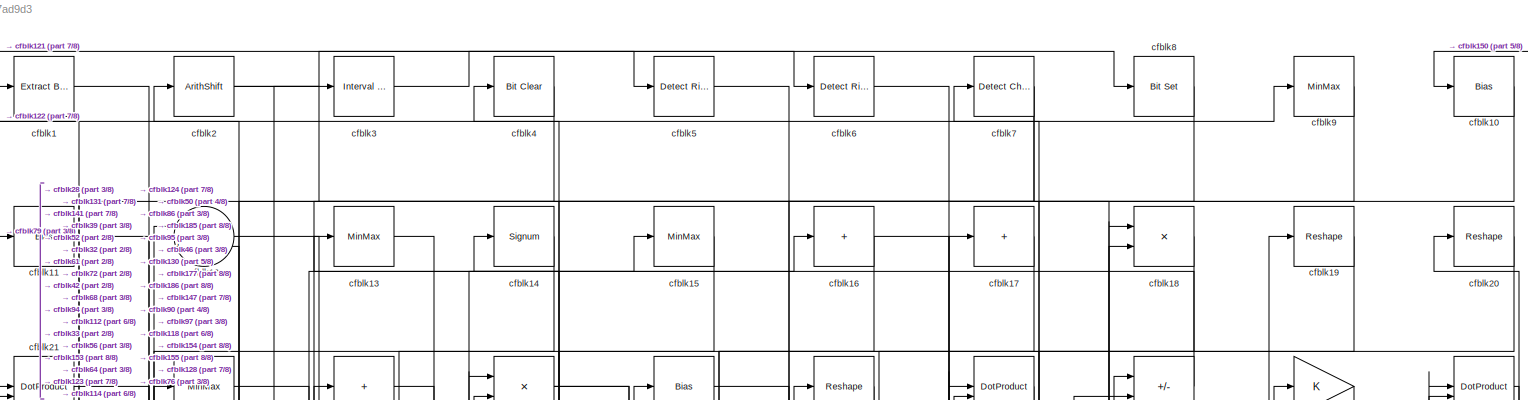
[diagram: root canvas - part 1/8, full width, top band]
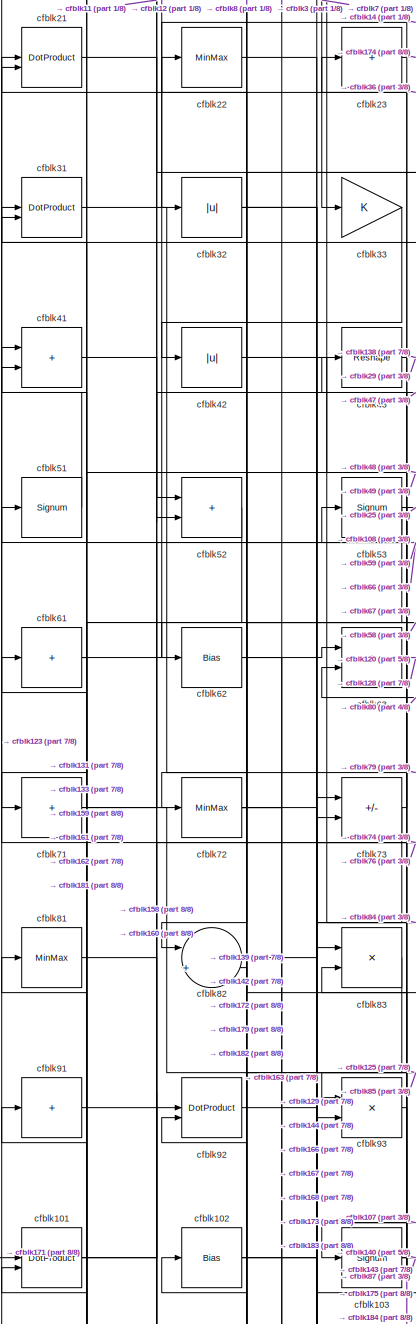
[diagram: root canvas - part 2/8, middle left region]
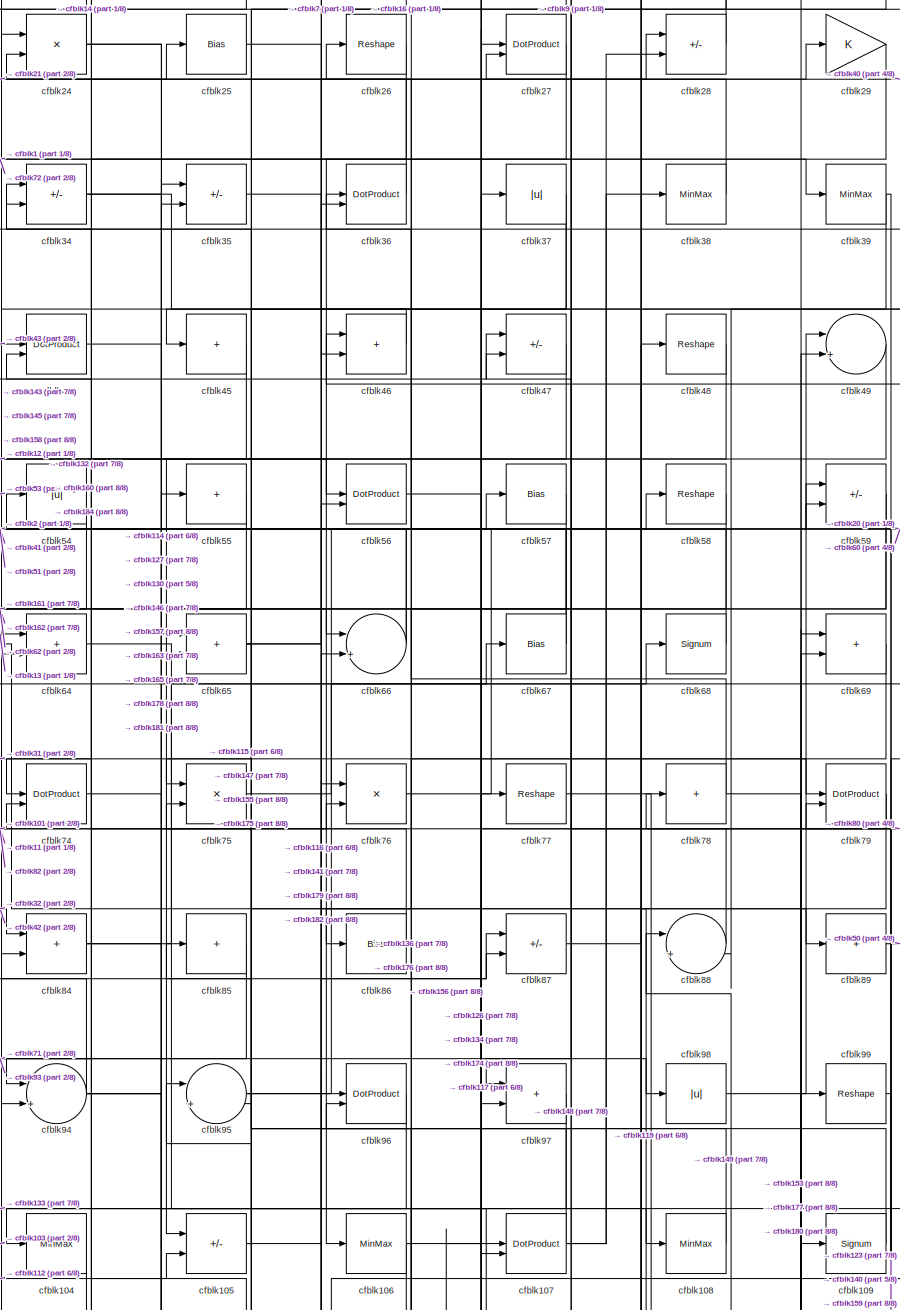
[diagram: root canvas - part 3/8, central region]
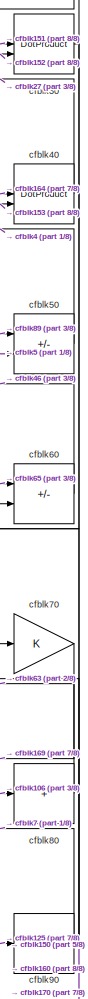
[diagram: root canvas - part 4/8, top right region]
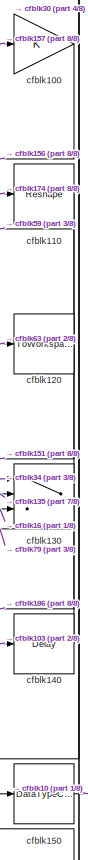
[diagram: root canvas - part 5/8, middle right region]
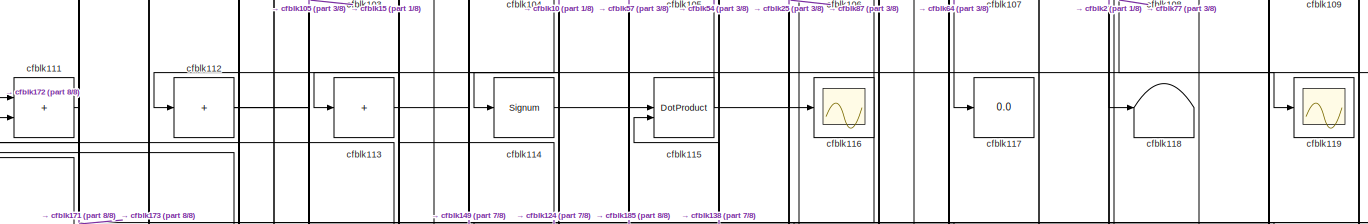
[diagram: root canvas - part 6/8, full width, middle band]
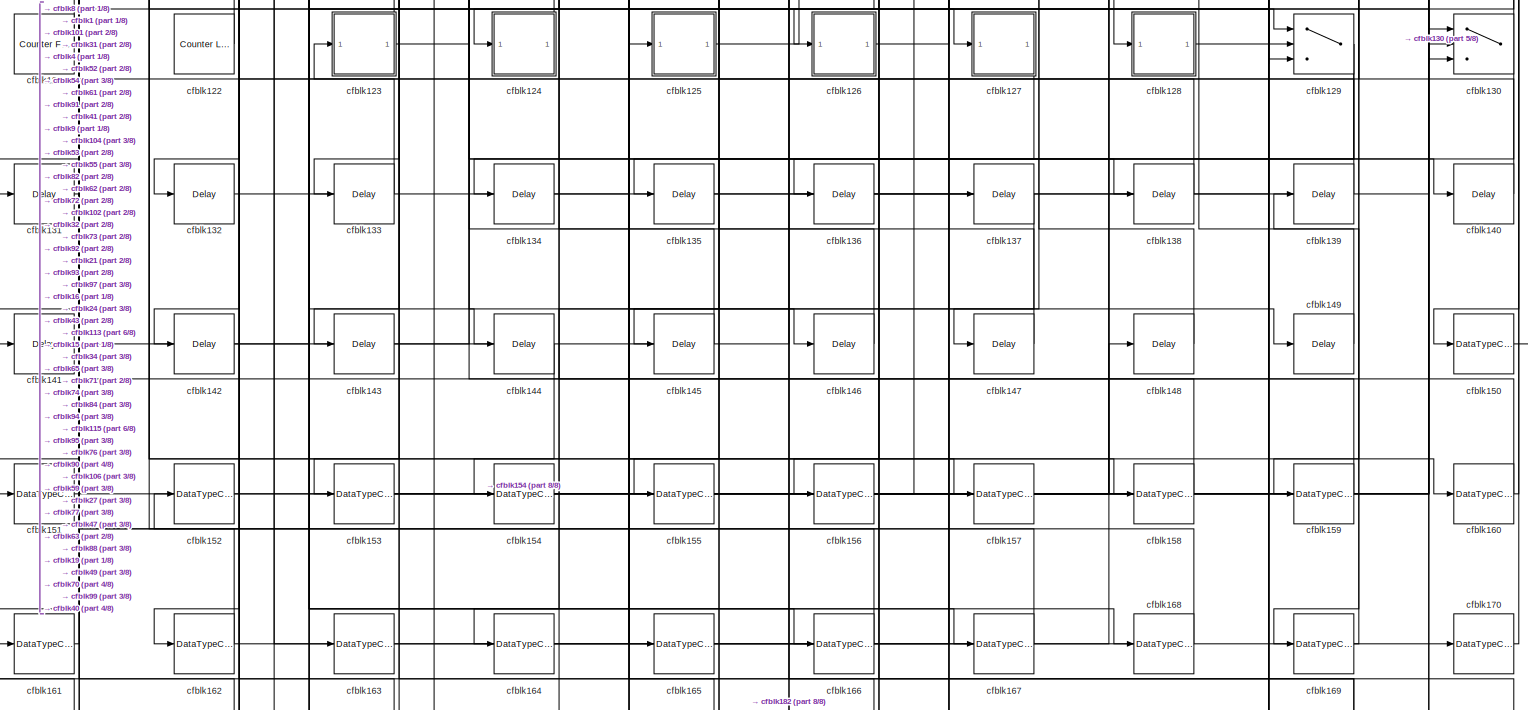
[diagram: root canvas - part 7/8, full width, bottom band]
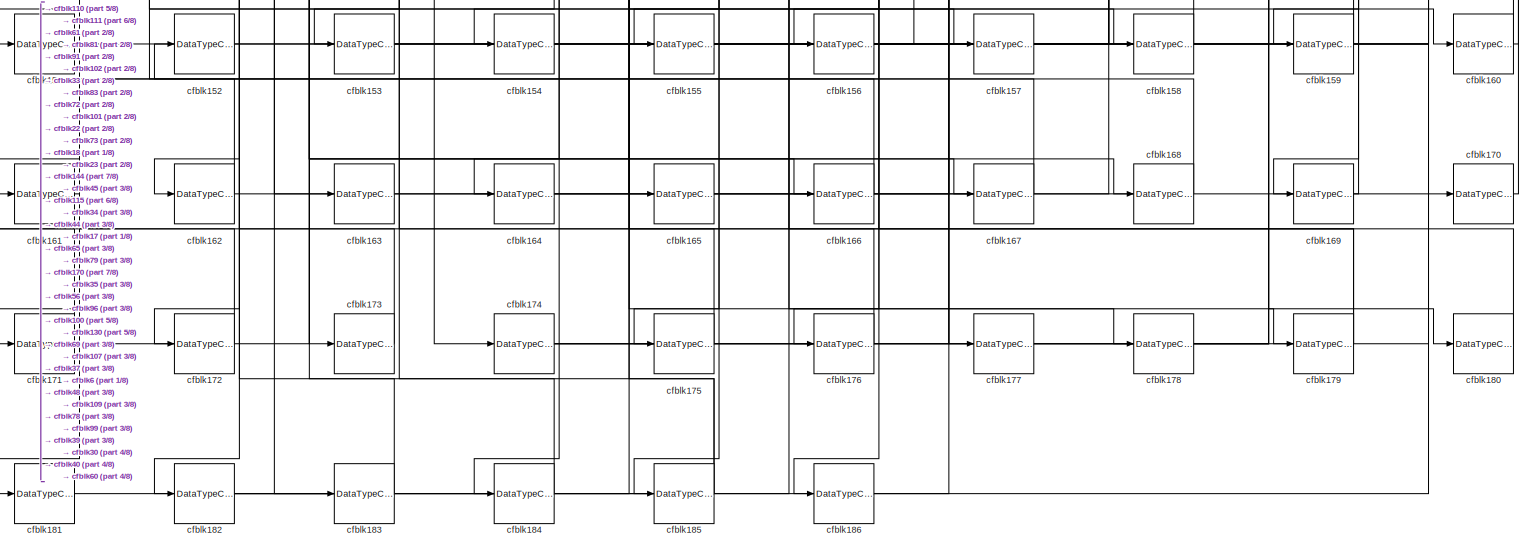
[diagram: root canvas - part 8/8, full width, bottom band]
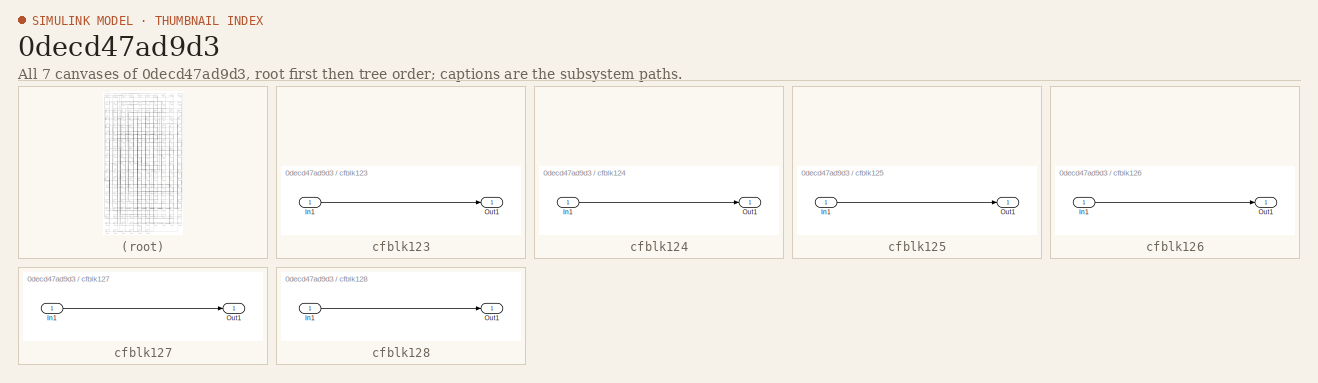
[diagram: thumbnail index - all 7 canvases of the model, root first then tree order]
MODEL slx_0decd47ad9d3
KIND model
CONFIG AbsTol = auto
CONFIG EnableMultiTasking = off
CONFIG FixedStep = auto
CONFIG MaxStep = auto
CONFIG MinStep = auto
CONFIG RelTol = 1e-3
CONFIG SampleTimeConstraint = Unconstrained
CONFIG SolverName = VariableStepAuto
CONFIG StartTime = 0.0
CONFIG StopTime = 10.0
BLOCK [Reference] cfblk1  REF=simulink/Logic and Bit
Operations/Extract Bits
  LibrarySourceBlock = hdlsllib/Logic and Bit\nOperations/Extract Bits
  SourceBlock = simulink/Logic and Bit\nOperations/Extract Bits
  SourceType = Extract Bits
BLOCK [Bias] cfblk10
  Bias = 0.0
  SaturateOnIntegerOverflow = off
BLOCK [Gain] cfblk100
BLOCK [DotProduct] cfblk101
  OutDataTypeStr = Inherit: Inherit via internal rule
BLOCK [Bias] cfblk102
  Bias = 0.0
  SaturateOnIntegerOverflow = off
BLOCK [Signum] cfblk103
BLOCK [MinMax] cfblk104
BLOCK [Sum] cfblk105
  IconShape = rectangular
  Inputs = +-
BLOCK [MinMax] cfblk106
BLOCK [DotProduct] cfblk107
  OutDataTypeStr = Inherit: Inherit via internal rule
BLOCK [MinMax] cfblk108
BLOCK [Signum] cfblk109
BLOCK [Bias] cfblk11
  Bias = 0.0
  SaturateOnIntegerOverflow = off
BLOCK [Reshape] cfblk110
BLOCK [Sum] cfblk111
  IconShape = rectangular
BLOCK [Sum] cfblk112
  IconShape = rectangular
  Inputs = +
BLOCK [Sum] cfblk113
  IconShape = rectangular
  Inputs = +
BLOCK [Signum] cfblk114
BLOCK [DotProduct] cfblk115
  OutDataTypeStr = Inherit: Inherit via internal rule
BLOCK [Scope] cfblk116
  Floating = off
  NumInputPorts = 1
  ScopeSpecificationString = Simulink.scopes.TimeScopeBlockCfg('CurrentConfiguration', extmgr.ConfigurationSet(extmgr.Configuration('Core','General UI',true),extmgr.Configuration('Core','Source UI',true),extmgr.Configuration('Sources','WiredSimulink',true,'DataLoggingVariableName','ScopeData2','DataLoggingSaveFormat','Array','DataLoggingLimitDataPoints',true,'DataLoggingDecimation','1'),extmgr.Configuration('Visuals','Time Do...<+868ch>
BLOCK [Display] cfblk117
  Decimation = 1
BLOCK [Terminator] cfblk118
BLOCK [Scope] cfblk119
  Floating = off
  NumInputPorts = 1
  ScopeSpecificationString = Simulink.scopes.TimeScopeBlockCfg('CurrentConfiguration', extmgr.ConfigurationSet(extmgr.Configuration('Core','General UI',true),extmgr.Configuration('Core','Source UI',true),extmgr.Configuration('Sources','WiredSimulink',true,'DataLoggingVariableName','ScopeData2','DataLoggingSaveFormat','Array','DataLoggingLimitDataPoints',true,'DataLoggingDecimation','1'),extmgr.Configuration('Visuals','Time Do...<+868ch>
BLOCK [Sum] cfblk12
  Inputs = |++
BLOCK [ToWorkspace] cfblk120
  MaxDataPoints = inf
  SampleTime = -1
  SaveFormat = Timeseries
  VariableName = simout
BLOCK [Reference] cfblk121  REF=hdlsllib/Sources/Counter
Free-Running
  SourceBlock = hdlsllib/Sources/Counter\nFree-Running
  SourceType = Counter Free-Running
BLOCK [Reference] cfblk122  REF=hdlsllib/Sources/Counter
Limited
  SourceBlock = hdlsllib/Sources/Counter\nLimited
  SourceType = Counter Limited
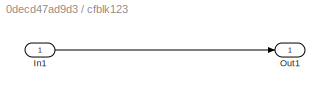
BLOCK [SubSystem] cfblk123
  LibrarySourceBlock = hdlsllib/Ports &\nSubsystems/Subsystem
BLOCK [Inport] cfblk123/In1
BLOCK [Outport] cfblk123/Out1
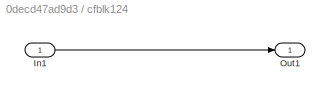
BLOCK [SubSystem] cfblk124
  LibrarySourceBlock = hdlsllib/Ports &\nSubsystems/Subsystem
BLOCK [Inport] cfblk124/In1
BLOCK [Outport] cfblk124/Out1
BLOCK [SubSystem] cfblk125
  LibrarySourceBlock = hdlsllib/Ports &\nSubsystems/Subsystem
BLOCK [Inport] cfblk125/In1
BLOCK [Outport] cfblk125/Out1
BLOCK [SubSystem] cfblk126
  LibrarySourceBlock = hdlsllib/Ports &\nSubsystems/Subsystem
BLOCK [Inport] cfblk126/In1
BLOCK [Outport] cfblk126/Out1
BLOCK [SubSystem] cfblk127
  LibrarySourceBlock = hdlsllib/Ports &\nSubsystems/Subsystem
BLOCK [Inport] cfblk127/In1
BLOCK [Outport] cfblk127/Out1
BLOCK [SubSystem] cfblk128
  LibrarySourceBlock = hdlsllib/Ports &\nSubsystems/Subsystem
BLOCK [Inport] cfblk128/In1
BLOCK [Outport] cfblk128/Out1
BLOCK [Switch] cfblk129
  InputSameDT = off
  SaturateOnIntegerOverflow = off
BLOCK [MinMax] cfblk13
BLOCK [Switch] cfblk130
  InputSameDT = off
  SaturateOnIntegerOverflow = off
BLOCK [Delay] cfblk131
  InputPortMap = u0
  SampleTime = 1
BLOCK [Delay] cfblk132
  InputPortMap = u0
  SampleTime = 1
BLOCK [Delay] cfblk133
  InputPortMap = u0
  SampleTime = 1
BLOCK [Delay] cfblk134
  InputPortMap = u0
  SampleTime = 1
BLOCK [Delay] cfblk135
  InputPortMap = u0
  SampleTime = 1
BLOCK [Delay] cfblk136
  InputPortMap = u0
  SampleTime = 1
BLOCK [Delay] cfblk137
  InputPortMap = u0
  SampleTime = 1
BLOCK [Delay] cfblk138
  InputPortMap = u0
  SampleTime = 1
BLOCK [Delay] cfblk139
  InputPortMap = u0
  SampleTime = 1
BLOCK [Signum] cfblk14
BLOCK [Delay] cfblk140
  InputPortMap = u0
  SampleTime = 1
BLOCK [Delay] cfblk141
  InputPortMap = u0
  SampleTime = 1
BLOCK [Delay] cfblk142
  InputPortMap = u0
  SampleTime = 1
BLOCK [Delay] cfblk143
  InputPortMap = u0
  SampleTime = 1
BLOCK [Delay] cfblk144
  InputPortMap = u0
  SampleTime = 1
BLOCK [Delay] cfblk145
  InputPortMap = u0
  SampleTime = 1
BLOCK [Delay] cfblk146
  InputPortMap = u0
  SampleTime = 1
BLOCK [Delay] cfblk147
  InputPortMap = u0
  SampleTime = 1
BLOCK [Delay] cfblk148
  InputPortMap = u0
  SampleTime = 1
BLOCK [Delay] cfblk149
  InputPortMap = u0
  SampleTime = 1
BLOCK [MinMax] cfblk15
BLOCK [DataTypeConversion] cfblk150
  OutDataTypeStr = uint8
  RndMeth = Floor
  SaturateOnIntegerOverflow = off
BLOCK [DataTypeConversion] cfblk151
  OutDataTypeStr = uint8
  RndMeth = Floor
  SaturateOnIntegerOverflow = off
BLOCK [DataTypeConversion] cfblk152
  OutDataTypeStr = uint8
  RndMeth = Floor
  SaturateOnIntegerOverflow = off
BLOCK [DataTypeConversion] cfblk153
  RndMeth = Floor
  SaturateOnIntegerOverflow = off
BLOCK [DataTypeConversion] cfblk154
  OutDataTypeStr = uint8
  RndMeth = Floor
  SaturateOnIntegerOverflow = off
BLOCK [DataTypeConversion] cfblk155
  OutDataTypeStr = uint8
  RndMeth = Floor
  SaturateOnIntegerOverflow = off
BLOCK [DataTypeConversion] cfblk156
  RndMeth = Floor
  SaturateOnIntegerOverflow = off
BLOCK [DataTypeConversion] cfblk157
  OutDataTypeStr = uint8
  RndMeth = Floor
  SaturateOnIntegerOverflow = off
BLOCK [DataTypeConversion] cfblk158
  OutDataTypeStr = uint8
  RndMeth = Floor
  SaturateOnIntegerOverflow = off
BLOCK [DataTypeConversion] cfblk159
  OutDataTypeStr = uint8
  RndMeth = Floor
  SaturateOnIntegerOverflow = off
BLOCK [Sum] cfblk16
  IconShape = rectangular
  Inputs = +
BLOCK [DataTypeConversion] cfblk160
  RndMeth = Floor
  SaturateOnIntegerOverflow = off
BLOCK [DataTypeConversion] cfblk161
  OutDataTypeStr = uint8
  RndMeth = Floor
  SaturateOnIntegerOverflow = off
BLOCK [DataTypeConversion] cfblk162
  RndMeth = Floor
  SaturateOnIntegerOverflow = off
BLOCK [DataTypeConversion] cfblk163
  OutDataTypeStr = uint8
  RndMeth = Floor
  SaturateOnIntegerOverflow = off
BLOCK [DataTypeConversion] cfblk164
  OutDataTypeStr = uint8
  RndMeth = Floor
  SaturateOnIntegerOverflow = off
BLOCK [DataTypeConversion] cfblk165
  OutDataTypeStr = uint8
  RndMeth = Floor
  SaturateOnIntegerOverflow = off
BLOCK [DataTypeConversion] cfblk166
  OutDataTypeStr = uint8
  RndMeth = Floor
  SaturateOnIntegerOverflow = off
BLOCK [DataTypeConversion] cfblk167
  OutDataTypeStr = uint8
  RndMeth = Floor
  SaturateOnIntegerOverflow = off
BLOCK [DataTypeConversion] cfblk168
  OutDataTypeStr = uint8
  RndMeth = Floor
  SaturateOnIntegerOverflow = off
BLOCK [DataTypeConversion] cfblk169
  OutDataTypeStr = uint8
  RndMeth = Floor
  SaturateOnIntegerOverflow = off
BLOCK [Sum] cfblk17
  IconShape = rectangular
  Inputs = +
BLOCK [DataTypeConversion] cfblk170
  OutDataTypeStr = uint8
  RndMeth = Floor
  SaturateOnIntegerOverflow = off
BLOCK [DataTypeConversion] cfblk171
  RndMeth = Floor
  SaturateOnIntegerOverflow = off
BLOCK [DataTypeConversion] cfblk172
  OutDataTypeStr = uint8
  RndMeth = Floor
  SaturateOnIntegerOverflow = off
BLOCK [DataTypeConversion] cfblk173
  OutDataTypeStr = uint8
  RndMeth = Floor
  SaturateOnIntegerOverflow = off
BLOCK [DataTypeConversion] cfblk174
  RndMeth = Floor
  SaturateOnIntegerOverflow = off
BLOCK [DataTypeConversion] cfblk175
  OutDataTypeStr = uint8
  RndMeth = Floor
  SaturateOnIntegerOverflow = off
BLOCK [DataTypeConversion] cfblk176
  OutDataTypeStr = uint8
  RndMeth = Floor
  SaturateOnIntegerOverflow = off
BLOCK [DataTypeConversion] cfblk177
  OutDataTypeStr = uint8
  RndMeth = Floor
  SaturateOnIntegerOverflow = off
BLOCK [DataTypeConversion] cfblk178
  OutDataTypeStr = uint8
  RndMeth = Floor
  SaturateOnIntegerOverflow = off
BLOCK [DataTypeConversion] cfblk179
  RndMeth = Floor
  SaturateOnIntegerOverflow = off
BLOCK [Product] cfblk18
  Inputs = */
  RndMeth = Zero
  SaturateOnIntegerOverflow = on
BLOCK [DataTypeConversion] cfblk180
  OutDataTypeStr = uint8
  RndMeth = Floor
  SaturateOnIntegerOverflow = off
BLOCK [DataTypeConversion] cfblk181
  OutDataTypeStr = uint8
  RndMeth = Floor
  SaturateOnIntegerOverflow = off
BLOCK [DataTypeConversion] cfblk182
  RndMeth = Floor
  SaturateOnIntegerOverflow = off
BLOCK [DataTypeConversion] cfblk183
  OutDataTypeStr = uint8
  RndMeth = Floor
  SaturateOnIntegerOverflow = off
BLOCK [DataTypeConversion] cfblk184
  OutDataTypeStr = uint8
  RndMeth = Floor
  SaturateOnIntegerOverflow = off
BLOCK [DataTypeConversion] cfblk185
  RndMeth = Floor
  SaturateOnIntegerOverflow = off
BLOCK [DataTypeConversion] cfblk186
  OutDataTypeStr = uint8
  RndMeth = Floor
  SaturateOnIntegerOverflow = off
BLOCK [Reshape] cfblk19
BLOCK [ArithShift] cfblk2
  BitShiftNumber = 8
  InputPortMap = u0
BLOCK [Reshape] cfblk20
BLOCK [DotProduct] cfblk21
  OutDataTypeStr = Inherit: Inherit via internal rule
BLOCK [MinMax] cfblk22
BLOCK [Sum] cfblk23
  IconShape = rectangular
  Inputs = +
BLOCK [Product] cfblk24
  Inputs = */
  RndMeth = Zero
  SaturateOnIntegerOverflow = on
BLOCK [Bias] cfblk25
  Bias = 0.0
  SaturateOnIntegerOverflow = off
BLOCK [Reshape] cfblk26
BLOCK [DotProduct] cfblk27
  OutDataTypeStr = Inherit: Inherit via internal rule
BLOCK [Sum] cfblk28
  IconShape = rectangular
  Inputs = +-
BLOCK [Gain] cfblk29
BLOCK [Reference] cfblk3  REF=hdlsllib/Logic and Bit
Operations/Interval Test
  SourceBlock = hdlsllib/Logic and Bit\nOperations/Interval Test
  SourceType = Interval Test
BLOCK [DotProduct] cfblk30
  OutDataTypeStr = Inherit: Inherit via internal rule
BLOCK [DotProduct] cfblk31
  OutDataTypeStr = Inherit: Inherit via internal rule
BLOCK [Abs] cfblk32
  SaturateOnIntegerOverflow = off
BLOCK [Gain] cfblk33
BLOCK [Sum] cfblk34
  IconShape = rectangular
  Inputs = +-
BLOCK [Sum] cfblk35
  IconShape = rectangular
  Inputs = +-
BLOCK [DotProduct] cfblk36
  OutDataTypeStr = Inherit: Inherit via internal rule
BLOCK [Abs] cfblk37
  SaturateOnIntegerOverflow = off
BLOCK [MinMax] cfblk38
BLOCK [MinMax] cfblk39
BLOCK [Reference] cfblk4  REF=simulink/Logic and Bit
Operations/Bit Clear
  LibrarySourceBlock = hdlsllib/Logic and Bit\nOperations/Bit Clear
  SourceBlock = simulink/Logic and Bit\nOperations/Bit Clear
  SourceType = Bit Clear
BLOCK [DotProduct] cfblk40
  OutDataTypeStr = Inherit: Inherit via internal rule
BLOCK [Sum] cfblk41
  IconShape = rectangular
BLOCK [Abs] cfblk42
  SaturateOnIntegerOverflow = off
BLOCK [Reshape] cfblk43
BLOCK [DotProduct] cfblk44
  OutDataTypeStr = Inherit: Inherit via internal rule
BLOCK [Sum] cfblk45
  IconShape = rectangular
  Inputs = +
BLOCK [Sum] cfblk46
  IconShape = rectangular
BLOCK [Sum] cfblk47
  IconShape = rectangular
  Inputs = +-
BLOCK [Reshape] cfblk48
BLOCK [Sum] cfblk49
  Inputs = |++
BLOCK [Reference] cfblk5  REF=hdlsllib/Logic and Bit
Operations/Detect Rise
Positive
  SourceBlock = hdlsllib/Logic and Bit\nOperations/Detect Rise\nPositive
  SourceType = Detect Rise Positive
BLOCK [Sum] cfblk50
  IconShape = rectangular
  Inputs = +-
BLOCK [Signum] cfblk51
BLOCK [Sum] cfblk52
  IconShape = rectangular
BLOCK [Signum] cfblk53
BLOCK [Abs] cfblk54
  SaturateOnIntegerOverflow = off
BLOCK [Sum] cfblk55
  IconShape = rectangular
  Inputs = +
BLOCK [DotProduct] cfblk56
  OutDataTypeStr = Inherit: Inherit via internal rule
BLOCK [Bias] cfblk57
  Bias = 0.0
  SaturateOnIntegerOverflow = off
BLOCK [Reshape] cfblk58
BLOCK [Sum] cfblk59
  IconShape = rectangular
  Inputs = +-
BLOCK [Reference] cfblk6  REF=hdlsllib/Logic and Bit
Operations/Detect Rise
Nonnegative
  SourceBlock = hdlsllib/Logic and Bit\nOperations/Detect Rise\nNonnegative
  SourceType = Detect Rise Nonnegative
BLOCK [Sum] cfblk60
  IconShape = rectangular
  Inputs = +-
BLOCK [Sum] cfblk61
  IconShape = rectangular
  Inputs = +
BLOCK [Bias] cfblk62
  Bias = 0.0
  SaturateOnIntegerOverflow = off
BLOCK [Sum] cfblk63
  IconShape = rectangular
BLOCK [Sum] cfblk64
  IconShape = rectangular
BLOCK [Sum] cfblk65
  IconShape = rectangular
BLOCK [Sum] cfblk66
  Inputs = |++
BLOCK [Bias] cfblk67
  Bias = 0.0
  SaturateOnIntegerOverflow = off
BLOCK [Signum] cfblk68
BLOCK [Sum] cfblk69
  IconShape = rectangular
BLOCK [Reference] cfblk7  REF=simulink/Logic and Bit
Operations/Detect
Change
  LibrarySourceBlock = hdlsllib/Logic and Bit\nOperations/Detect\nChange
  SourceBlock = simulink/Logic and Bit\nOperations/Detect\nChange
  SourceType = Detect Change
BLOCK [Gain] cfblk70
BLOCK [Sum] cfblk71
  IconShape = rectangular
  Inputs = +
BLOCK [MinMax] cfblk72
BLOCK [Sum] cfblk73
  IconShape = rectangular
  Inputs = +-
BLOCK [DotProduct] cfblk74
  OutDataTypeStr = Inherit: Inherit via internal rule
BLOCK [Product] cfblk75
  Inputs = */
  RndMeth = Zero
  SaturateOnIntegerOverflow = on
BLOCK [Product] cfblk76
  Inputs = */
  RndMeth = Zero
  SaturateOnIntegerOverflow = on
BLOCK [Reshape] cfblk77
BLOCK [Sum] cfblk78
  IconShape = rectangular
  Inputs = +
BLOCK [DotProduct] cfblk79
  OutDataTypeStr = Inherit: Inherit via internal rule
BLOCK [Reference] cfblk8  REF=simulink/Logic and Bit
Operations/Bit Set
  LibrarySourceBlock = hdlsllib/Logic and Bit\nOperations/Bit Set
  SourceBlock = simulink/Logic and Bit\nOperations/Bit Set
  SourceType = Bit Set
BLOCK [Sum] cfblk80
  IconShape = rectangular
  Inputs = +
BLOCK [MinMax] cfblk81
BLOCK [Sum] cfblk82
  Inputs = |++
BLOCK [Product] cfblk83
  Inputs = */
  RndMeth = Zero
  SaturateOnIntegerOverflow = on
BLOCK [Sum] cfblk84
  IconShape = rectangular
BLOCK [Sum] cfblk85
  IconShape = rectangular
  Inputs = +
BLOCK [Bias] cfblk86
  Bias = 0.0
  SaturateOnIntegerOverflow = off
BLOCK [Sum] cfblk87
  IconShape = rectangular
  Inputs = +-
BLOCK [Sum] cfblk88
  Inputs = |++
BLOCK [Sum] cfblk89
  IconShape = rectangular
  Inputs = +
BLOCK [MinMax] cfblk9
BLOCK [MinMax] cfblk90
BLOCK [Sum] cfblk91
  IconShape = rectangular
  Inputs = +
BLOCK [DotProduct] cfblk92
  OutDataTypeStr = Inherit: Inherit via internal rule
BLOCK [Product] cfblk93
  Inputs = */
  RndMeth = Zero
  SaturateOnIntegerOverflow = on
BLOCK [Sum] cfblk94
  Inputs = |++
BLOCK [Sum] cfblk95
  Inputs = |++
BLOCK [DotProduct] cfblk96
  OutDataTypeStr = Inherit: Inherit via internal rule
BLOCK [Sum] cfblk97
  IconShape = rectangular
BLOCK [Abs] cfblk98
  SaturateOnIntegerOverflow = off
BLOCK [Reshape] cfblk99
LINE cfblk100:1 -> cfblk156:1
NET cfblk101:1 -> cfblk59:1, cfblk74:2
NET cfblk102:1 -> cfblk129:2, cfblk167:1
NET cfblk103:1 -> cfblk140:1, cfblk87:1
LINE cfblk104:1 -> cfblk132:1
NET cfblk105:1 -> cfblk36:2, cfblk75:2
NET cfblk106:1 -> cfblk126:1, cfblk80:1
NET cfblk107:1 -> cfblk28:2, cfblk31:1, cfblk38:1
LINE cfblk108:1 -> cfblk51:1
LINE cfblk109:1 -> cfblk85:1
LINE cfblk10:1 -> cfblk114:1
LINE cfblk110:1 -> cfblk151:1
LINE cfblk111:1 -> cfblk171:1
NET cfblk112:1 -> cfblk105:2, cfblk15:1
LINE cfblk113:1 -> cfblk149:1
LINE cfblk114:1 -> cfblk57:1
NET cfblk115:1 -> cfblk54:1, cfblk87:2
LINE cfblk11:1 -> cfblk52:1
LINE cfblk121:1 -> cfblk8:1
LINE cfblk122:1 -> cfblk9:1
LINE cfblk123/In1:1 -> cfblk123/Out1:1
NET cfblk123:1 -> cfblk16:1, cfblk21:1
LINE cfblk124/In1:1 -> cfblk124/Out1:1
LINE cfblk124:1 -> cfblk113:1
LINE cfblk125/In1:1 -> cfblk125/Out1:1
LINE cfblk125:1 -> cfblk90:1
LINE cfblk126/In1:1 -> cfblk126/Out1:1
LINE cfblk126:1 -> cfblk77:1
LINE cfblk127/In1:1 -> cfblk127/Out1:1
LINE cfblk127:1 -> cfblk145:1
LINE cfblk128/In1:1 -> cfblk128/Out1:1
LINE cfblk128:1 -> cfblk19:1
NET cfblk129:1 -> cfblk134:1, cfblk135:1
LINE cfblk12:1 -> cfblk56:1
NET cfblk130:1 -> cfblk186:1, cfblk59:2
LINE cfblk131:1 -> cfblk1:1
LINE cfblk132:1 -> cfblk65:1
LINE cfblk133:1 -> cfblk31:2
LINE cfblk134:1 -> cfblk27:1
LINE cfblk135:1 -> cfblk130:2
LINE cfblk136:1 -> cfblk49:2
LINE cfblk137:1 -> cfblk164:1
LINE cfblk138:1 -> cfblk115:2
LINE cfblk139:1 -> cfblk82:2
LINE cfblk13:1 -> cfblk64:1
LINE cfblk140:1 -> cfblk79:2
LINE cfblk141:1 -> cfblk76:1
LINE cfblk142:1 -> cfblk73:1
LINE cfblk143:1 -> cfblk94:2
LINE cfblk144:1 -> cfblk154:1
LINE cfblk145:1 -> cfblk24:1
LINE cfblk146:1 -> cfblk34:2
LINE cfblk147:1 -> cfblk95:1
LINE cfblk148:1 -> cfblk47:2
LINE cfblk149:1 -> cfblk88:1
LINE cfblk14:1 -> cfblk32:1
LINE cfblk150:1 -> cfblk10:1
LINE cfblk151:1 -> cfblk30:1
LINE cfblk152:1 -> cfblk30:2
NET cfblk153:1 -> cfblk109:1, cfblk40:2
LINE cfblk154:1 -> cfblk18:1
LINE cfblk155:1 -> cfblk18:2
NET cfblk156:1 -> cfblk107:1, cfblk48:1
LINE cfblk157:1 -> cfblk100:1
LINE cfblk158:1 -> cfblk44:1
LINE cfblk159:1 -> cfblk81:1
LINE cfblk15:1 -> cfblk124:1
NET cfblk160:1 -> cfblk44:2, cfblk60:2
LINE cfblk161:1 -> cfblk91:1
NET cfblk162:1 -> cfblk148:1, cfblk61:1
LINE cfblk163:1 -> cfblk55:1
LINE cfblk164:1 -> cfblk40:1
LINE cfblk165:1 -> cfblk137:1
LINE cfblk166:1 -> cfblk101:2
LINE cfblk167:1 -> cfblk92:1
LINE cfblk168:1 -> cfblk92:2
LINE cfblk169:1 -> cfblk139:1
NET cfblk16:1 -> cfblk130:3, cfblk95:2
LINE cfblk170:1 -> cfblk70:1
NET cfblk171:1 -> cfblk101:1, cfblk73:2
LINE cfblk172:1 -> cfblk111:1
LINE cfblk173:1 -> cfblk111:2
NET cfblk174:1 -> cfblk110:1, cfblk37:1, cfblk99:1
LINE cfblk175:1 -> cfblk23:1
LINE cfblk176:1 -> cfblk96:1
LINE cfblk177:1 -> cfblk69:1
LINE cfblk178:1 -> cfblk69:2
NET cfblk179:1 -> cfblk102:1, cfblk96:2
LINE cfblk17:1 -> cfblk185:1
LINE cfblk180:1 -> cfblk35:1
LINE cfblk181:1 -> cfblk35:2
NET cfblk182:1 -> cfblk170:1, cfblk56:2
LINE cfblk183:1 -> cfblk83:1
LINE cfblk184:1 -> cfblk83:2
NET cfblk185:1 -> cfblk115:1, cfblk152:1
LINE cfblk186:1 -> cfblk17:1
LINE cfblk18:1 -> cfblk153:1
LINE cfblk19:1 -> cfblk147:1
LINE cfblk1:1 -> cfblk39:1
LINE cfblk20:1 -> cfblk86:1
LINE cfblk21:1 -> cfblk52:2
LINE cfblk22:1 -> cfblk173:1
LINE cfblk23:1 -> cfblk174:1
NET cfblk24:1 -> cfblk65:2, cfblk66:1
LINE cfblk25:1 -> cfblk116:1
LINE cfblk26:1 -> cfblk106:1
LINE cfblk27:1 -> cfblk94:1
LINE cfblk28:1 -> cfblk13:1
LINE cfblk29:1 -> cfblk72:1
NET cfblk2:1 -> cfblk118:1, cfblk6:1
LINE cfblk30:1 -> cfblk150:1
LINE cfblk31:1 -> cfblk79:1
NET cfblk32:1 -> cfblk129:3, cfblk168:1, cfblk84:2
LINE cfblk33:1 -> cfblk172:1
NET cfblk34:1 -> cfblk130:1, cfblk178:1
LINE cfblk35:1 -> cfblk179:1
LINE cfblk36:1 -> cfblk21:2
NET cfblk37:1 -> cfblk64:2, cfblk75:1
LINE cfblk38:1 -> cfblk26:1
NET cfblk39:1 -> cfblk159:1, cfblk88:2
LINE cfblk3:1 -> cfblk5:1
LINE cfblk40:1 -> cfblk27:2
LINE cfblk41:1 -> cfblk129:1
NET cfblk42:1 -> cfblk107:2, cfblk84:1
NET cfblk43:1 -> cfblk138:1, cfblk29:1
LINE cfblk44:1 -> cfblk157:1
LINE cfblk45:1 -> cfblk184:1
LINE cfblk46:1 -> cfblk45:1
LINE cfblk47:1 -> cfblk105:1
LINE cfblk48:1 -> cfblk71:1
LINE cfblk49:1 -> cfblk82:1
LINE cfblk4:1 -> cfblk141:1
LINE cfblk50:1 -> cfblk4:1
LINE cfblk51:1 -> cfblk41:1
LINE cfblk52:1 -> cfblk131:1
NET cfblk53:1 -> cfblk103:1, cfblk142:1, cfblk25:1
LINE cfblk54:1 -> cfblk161:1
LINE cfblk55:1 -> cfblk162:1
LINE cfblk56:1 -> cfblk97:2
LINE cfblk57:1 -> cfblk112:1
LINE cfblk58:1 -> cfblk62:1
NET cfblk59:1 -> cfblk136:1, cfblk74:1
LINE cfblk5:1 -> cfblk50:2
LINE cfblk60:1 -> cfblk46:1
NET cfblk61:1 -> cfblk12:1, cfblk181:1
NET cfblk62:1 -> cfblk163:1, cfblk63:1
NET cfblk63:1 -> cfblk120:1, cfblk128:1
LINE cfblk64:1 -> cfblk117:1
NET cfblk65:1 -> cfblk175:1, cfblk28:1, cfblk60:1
NET cfblk66:1 -> cfblk34:1, cfblk41:2
NET cfblk67:1 -> cfblk36:1, cfblk43:1
LINE cfblk68:1 -> cfblk2:1
LINE cfblk69:1 -> cfblk176:1
LINE cfblk6:1 -> cfblk177:1
LINE cfblk70:1 -> cfblk169:1
NET cfblk71:1 -> cfblk125:1, cfblk47:1
NET cfblk72:1 -> cfblk144:1, cfblk183:1, cfblk22:1, cfblk3:1
NET cfblk73:1 -> cfblk53:1, cfblk93:2
LINE cfblk74:1 -> cfblk165:1
LINE cfblk75:1 -> cfblk58:1
LINE cfblk76:1 -> cfblk20:1
LINE cfblk77:1 -> cfblk119:1
NET cfblk78:1 -> cfblk180:1, cfblk24:2
NET cfblk79:1 -> cfblk11:1, cfblk155:1
NET cfblk7:1 -> cfblk33:1, cfblk46:2
LINE cfblk80:1 -> cfblk63:2
LINE cfblk81:1 -> cfblk158:1
LINE cfblk82:1 -> cfblk76:2
LINE cfblk83:1 -> cfblk182:1
NET cfblk84:1 -> cfblk127:1, cfblk67:1
LINE cfblk85:1 -> cfblk93:1
LINE cfblk86:1 -> cfblk14:1
LINE cfblk87:1 -> cfblk89:1
LINE cfblk88:1 -> cfblk78:1
LINE cfblk89:1 -> cfblk50:1
LINE cfblk8:1 -> cfblk42:1
LINE cfblk90:1 -> cfblk7:1
LINE cfblk91:1 -> cfblk160:1
LINE cfblk92:1 -> cfblk166:1
LINE cfblk93:1 -> cfblk143:1
NET cfblk94:1 -> cfblk108:1, cfblk12:2, cfblk146:1, cfblk98:1
NET cfblk95:1 -> cfblk66:2, cfblk68:1
LINE cfblk96:1 -> cfblk104:1
LINE cfblk97:1 -> cfblk133:1
LINE cfblk98:1 -> cfblk49:1
LINE cfblk99:1 -> cfblk123:1
LINE cfblk9:1 -> cfblk97:1
note: NET lines group one-source signal fan-out (src -> all destinations, sorted); 1:1 wires keep LINE
